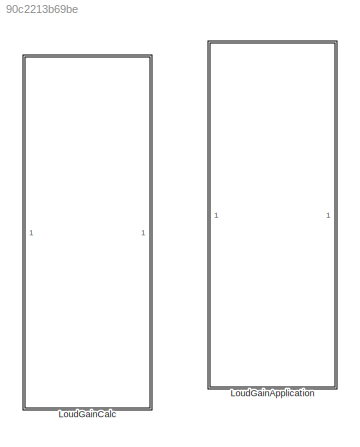
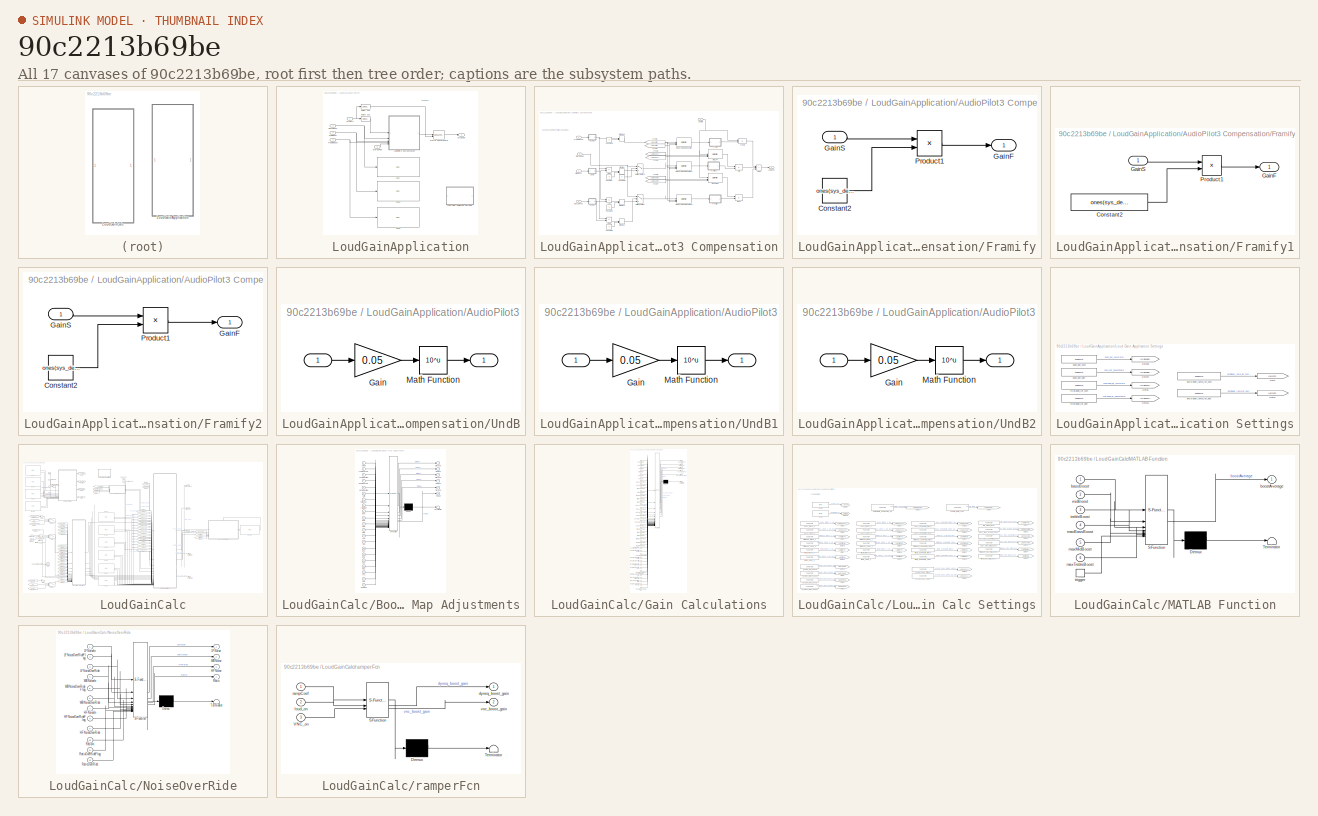
[diagram: thumbnail index - all 17 canvases of the model, root first then tree order]
MODEL slx_90c2213b69be
KIND library
CONFIG AbsTol = auto
CONFIG EnableMultiTasking = off
CONFIG FixedStep = auto
CONFIG InitFcn = Loudness_init;
CONFIG MaxStep = auto
CONFIG MinStep = auto
CONFIG RelTol = 1e-3
CONFIG SampleTimeConstraint = Unconstrained
CONFIG SolverName = VariableStepAuto
CONFIG StartTime = 0.0
CONFIG StopTime = 10.0
BLOCK [SubSystem] LoudGainApplication
BLOCK [SubSystem] LoudGainApplication/AudioPilot3 Compensation
BLOCK [Sum] LoudGainApplication/AudioPilot3 Compensation/Add
  IconShape = rectangular
  Inputs = -+
BLOCK [Sum] LoudGainApplication/AudioPilot3 Compensation/Add1
  IconShape = rectangular
  Inputs = -+
BLOCK [Sum] LoudGainApplication/AudioPilot3 Compensation/Add2
  IconShape = rectangular
  Inputs = +++
BLOCK [Sum] LoudGainApplication/AudioPilot3 Compensation/Add3
  IconShape = rectangular
  Inputs = -+
BLOCK [Inport] LoudGainApplication/AudioPilot3 Compensation/Audio in
BLOCK [Outport] LoudGainApplication/AudioPilot3 Compensation/Audio out
  VectorParamsAs1DForOutWhenUnconnected = off
BLOCK [Product] LoudGainApplication/AudioPilot3 Compensation/Bass
  InputSameDT = on
  OutDataTypeStr = Inherit: Same as first input
  SaturateOnIntegerOverflow = on
BLOCK [Reference] LoudGainApplication/AudioPilot3 Compensation/Bass BPF  REF=dspobslib/Digital Filter
  SourceBlock = dspobslib/Digital Filter
  SourceType = Digital Filter
  UserDataPersistent = on
BLOCK [Inport] LoudGainApplication/AudioPilot3 Compensation/BassBoost
  Port = 2
BLOCK [Constant] LoudGainApplication/AudioPilot3 Compensation/Constant
  OutDataTypeStr = single
  Value = 0
BLOCK [Constant] LoudGainApplication/AudioPilot3 Compensation/Constant1
  OutDataTypeStr = single
  Value = 0
BLOCK [Constant] LoudGainApplication/AudioPilot3 Compensation/Constant2
  OutDataTypeStr = single
  Value = 0
BLOCK [Constant] LoudGainApplication/AudioPilot3 Compensation/Constant3
  OutDataTypeStr = single
  Value = 0
BLOCK [Constant] LoudGainApplication/AudioPilot3 Compensation/Constant4
  OutDataTypeStr = single
  Value = 0
BLOCK [SubSystem] LoudGainApplication/AudioPilot3 Compensation/Framify
  TreatAsAtomicUnit = on
BLOCK [Constant] LoudGainApplication/AudioPilot3 Compensation/Framify/Constant2
  OutDataTypeStr = single
  Value = ones(sys_defs.frameSize, sys_defs.number_of_input_entertainment_channels)
  VectorParams1D = off
BLOCK [Outport] LoudGainApplication/AudioPilot3 Compensation/Framify/GainF
  VectorParamsAs1DForOutWhenUnconnected = off
BLOCK [Inport] LoudGainApplication/AudioPilot3 Compensation/Framify/GainS
BLOCK [Product] LoudGainApplication/AudioPilot3 Compensation/Framify/Product1
  RndMeth = Zero
BLOCK [SubSystem] LoudGainApplication/AudioPilot3 Compensation/Framify1
  TreatAsAtomicUnit = on
BLOCK [Constant] LoudGainApplication/AudioPilot3 Compensation/Framify1/Constant2
  OutDataTypeStr = single
  Value = ones(sys_defs.frameSize, sys_defs.number_of_input_entertainment_channels)
  VectorParams1D = off
BLOCK [Outport] LoudGainApplication/AudioPilot3 Compensation/Framify1/GainF
  VectorParamsAs1DForOutWhenUnconnected = off
BLOCK [Inport] LoudGainApplication/AudioPilot3 Compensation/Framify1/GainS
  OutDataTypeStr = single
BLOCK [Product] LoudGainApplication/AudioPilot3 Compensation/Framify1/Product1
  RndMeth = Zero
BLOCK [SubSystem] LoudGainApplication/AudioPilot3 Compensation/Framify2
  TreatAsAtomicUnit = on
BLOCK [Constant] LoudGainApplication/AudioPilot3 Compensation/Framify2/Constant2
  OutDataTypeStr = single
  Value = ones(sys_defs.frameSize, sys_defs.number_of_input_entertainment_channels)
  VectorParams1D = off
BLOCK [Outport] LoudGainApplication/AudioPilot3 Compensation/Framify2/GainF
  VectorParamsAs1DForOutWhenUnconnected = off
BLOCK [Inport] LoudGainApplication/AudioPilot3 Compensation/Framify2/GainS
BLOCK [Product] LoudGainApplication/AudioPilot3 Compensation/Framify2/Product1
  RndMeth = Zero
BLOCK [From] LoudGainApplication/AudioPilot3 Compensation/From1
  GotoTag = LGCAntiZipLPFNum
  TagVisibility = global
BLOCK [From] LoudGainApplication/AudioPilot3 Compensation/From2
  GotoTag = LGCloudLPFNum
  TagVisibility = global
BLOCK [From] LoudGainApplication/AudioPilot3 Compensation/From3
  GotoTag = LGCloudLPFDenom
  TagVisibility = global
BLOCK [From] LoudGainApplication/AudioPilot3 Compensation/From4
  GotoTag = LGCAntiZipLPFDenom
  TagVisibility = global
BLOCK [From] LoudGainApplication/AudioPilot3 Compensation/From6
  GotoTag = LGCloudBPFNum
  TagVisibility = global
BLOCK [From] LoudGainApplication/AudioPilot3 Compensation/From7
  GotoTag = LGCloudBPFDenom
  TagVisibility = global
BLOCK [Product] LoudGainApplication/AudioPilot3 Compensation/Mid
  InputSameDT = on
  OutDataTypeStr = Inherit: Same as first input
  SaturateOnIntegerOverflow = on
BLOCK [Reference] LoudGainApplication/AudioPilot3 Compensation/Mid LPF  REF=dspobslib/Digital Filter
  SourceBlock = dspobslib/Digital Filter
  SourceType = Digital Filter
  UserDataPersistent = on
BLOCK [Inport] LoudGainApplication/AudioPilot3 Compensation/MidBoost
  Port = 3
BLOCK [MinMax] LoudGainApplication/AudioPilot3 Compensation/MinMax
  Function = max
  Inputs = 2
BLOCK [MinMax] LoudGainApplication/AudioPilot3 Compensation/MinMax1
  Function = max
  Inputs = 2
BLOCK [MinMax] LoudGainApplication/AudioPilot3 Compensation/MinMax2
  Function = max
  Inputs = 2
BLOCK [MinMax] LoudGainApplication/AudioPilot3 Compensation/MinMax3
  Function = max
  Inputs = 2
BLOCK [MultiPortSwitch] LoudGainApplication/AudioPilot3 Compensation/Multiport Switch
  DataPortOrder = Zero-based contiguous
  InputSameDT = off
  Inputs = 2
  SaturateOnIntegerOverflow = off
  zeroidx = on
BLOCK [MultiPortSwitch] LoudGainApplication/AudioPilot3 Compensation/Multiport Switch2
  DataPortOrder = Zero-based contiguous
  InputSameDT = off
  Inputs = 2
  SaturateOnIntegerOverflow = off
  zeroidx = on
BLOCK [Inport] LoudGainApplication/AudioPilot3 Compensation/StereoFlag
  Port = 5
BLOCK [Product] LoudGainApplication/AudioPilot3 Compensation/Treble
  InputSameDT = on
  OutDataTypeStr = Inherit: Same as first input
  SaturateOnIntegerOverflow = on
BLOCK [Inport] LoudGainApplication/AudioPilot3 Compensation/TrebleBoost
  Port = 4
BLOCK [SubSystem] LoudGainApplication/AudioPilot3 Compensation/UndB
BLOCK [Inport] LoudGainApplication/AudioPilot3 Compensation/UndB/ 
BLOCK [Outport] LoudGainApplication/AudioPilot3 Compensation/UndB/  
  VectorParamsAs1DForOutWhenUnconnected = off
BLOCK [Gain] LoudGainApplication/AudioPilot3 Compensation/UndB/Gain
  Gain = 0.05
  OutDataTypeStr = Inherit: Same as input
  ParamDataTypeStr = Inherit: Same as input
  SaturateOnIntegerOverflow = on
BLOCK [Math] LoudGainApplication/AudioPilot3 Compensation/UndB/Math Function
  Operator = 10^u
  SignedPower = on
BLOCK [SubSystem] LoudGainApplication/AudioPilot3 Compensation/UndB1
BLOCK [Inport] LoudGainApplication/AudioPilot3 Compensation/UndB1/ 
BLOCK [Outport] LoudGainApplication/AudioPilot3 Compensation/UndB1/  
  VectorParamsAs1DForOutWhenUnconnected = off
BLOCK [Gain] LoudGainApplication/AudioPilot3 Compensation/UndB1/Gain
  Gain = 0.05
  OutDataTypeStr = Inherit: Same as input
  ParamDataTypeStr = Inherit: Same as input
  SaturateOnIntegerOverflow = on
BLOCK [Math] LoudGainApplication/AudioPilot3 Compensation/UndB1/Math Function
  Operator = 10^u
  SignedPower = on
BLOCK [SubSystem] LoudGainApplication/AudioPilot3 Compensation/UndB2
BLOCK [Inport] LoudGainApplication/AudioPilot3 Compensation/UndB2/ 
BLOCK [Outport] LoudGainApplication/AudioPilot3 Compensation/UndB2/  
  VectorParamsAs1DForOutWhenUnconnected = off
BLOCK [Gain] LoudGainApplication/AudioPilot3 Compensation/UndB2/Gain
  Gain = 0.05
  OutDataTypeStr = Inherit: Same as input
  ParamDataTypeStr = Inherit: Same as input
  SaturateOnIntegerOverflow = on
BLOCK [Math] LoudGainApplication/AudioPilot3 Compensation/UndB2/Math Function
  Operator = 10^u
  SignedPower = on
BLOCK [Reference] LoudGainApplication/AudioPilot3 Compensation/Zipper Noise Reduction  REF=dspobslib/Digital Filter
  SourceBlock = dspobslib/Digital Filter
  SourceType = Digital Filter
  UserDataPersistent = on
BLOCK [Reference] LoudGainApplication/AudioPilot3 Compensation/Zipper Noise Reduction1  REF=dspobslib/Digital Filter
  SourceBlock = dspobslib/Digital Filter
  SourceType = Digital Filter
  UserDataPersistent = on
BLOCK [Reference] LoudGainApplication/AudioPilot3 Compensation/Zipper Noise Reduction2  REF=dspobslib/Digital Filter
  SourceBlock = dspobslib/Digital Filter
  SourceType = Digital Filter
  UserDataPersistent = on
BLOCK [Inport] LoudGainApplication/BassBoost
  Port = 2
BLOCK [SubSystem] LoudGainApplication/Loud Gain Application Settings
BLOCK [Goto] LoudGainApplication/Loud Gain Application Settings/Goto
  GotoTag = LGCAntiZipLPFNum
  TagVisibility = global
BLOCK [Goto] LoudGainApplication/Loud Gain Application Settings/Goto1
  GotoTag = LGCAntiZipLPFDenom
  TagVisibility = global
BLOCK [Goto] LoudGainApplication/Loud Gain Application Settings/Goto11
  GotoTag = LGCloudLPFDenom
  TagVisibility = global
BLOCK [Goto] LoudGainApplication/Loud Gain Application Settings/Goto36
  GotoTag = LGCloudBPFNum
  TagVisibility = global
BLOCK [Goto] LoudGainApplication/Loud Gain Application Settings/Goto37
  GotoTag = LGCloudBPFDenom
  TagVisibility = global
BLOCK [Goto] LoudGainApplication/Loud Gain Application Settings/Goto6
  GotoTag = LGCloudLPFNum
  TagVisibility = global
BLOCK [Reference] LoudGainApplication/Loud Gain Application Settings/antizipper_ramp_lpf_den  REF=TuneVar/TuneTOP
  SourceBlock = TuneVar/TuneTOP
  SourceType = Bose Trivial Tune TOP
BLOCK [Reference] LoudGainApplication/Loud Gain Application Settings/antizipper_ramp_lpf_num  REF=TuneVar/TuneTOP
  SourceBlock = TuneVar/TuneTOP
  SourceType = Bose Trivial Tune TOP
BLOCK [Reference] LoudGainApplication/Loud Gain Application Settings/bass_bpf_den  REF=TuneVar/TuneTOP
  SourceBlock = TuneVar/TuneTOP
  SourceType = Bose Trivial Tune TOP
BLOCK [Reference] LoudGainApplication/Loud Gain Application Settings/bass_bpf_num  REF=TuneVar/TuneTOP
  SourceBlock = TuneVar/TuneTOP
  SourceType = Bose Trivial Tune TOP
BLOCK [Reference] LoudGainApplication/Loud Gain Application Settings/midrange_lpf_den  REF=TuneVar/TuneTOP
  SourceBlock = TuneVar/TuneTOP
  SourceType = Bose Trivial Tune TOP
BLOCK [Reference] LoudGainApplication/Loud Gain Application Settings/midrange_lpf_num  REF=TuneVar/TuneTOP
  SourceBlock = TuneVar/TuneTOP
  SourceType = Bose Trivial Tune TOP
BLOCK [Concatenate] LoudGainApplication/Matrix Concatenate
  ConcatenateDimension = 2
  Mode = Multidimensional array
BLOCK [Inport] LoudGainApplication/MidBoost
  Port = 3
BLOCK [Inport] LoudGainApplication/MusicIn
BLOCK [Outport] LoudGainApplication/MusicOut
  VectorParamsAs1DForOutWhenUnconnected = off
BLOCK [Reference] LoudGainApplication/RTC  REF=RTC/RTC
  SourceBlock = RTC/RTC
  SourceType = Bose RTC Receive
BLOCK [Reference] LoudGainApplication/RTC1  REF=RTC/RTC
  SourceBlock = RTC/RTC
  SourceType = Bose RTC Receive
BLOCK [Reference] LoudGainApplication/RTC2  REF=RTC/RTC
  SourceBlock = RTC/RTC
  SourceType = Bose RTC Receive
BLOCK [Inport] LoudGainApplication/StereoFlag
  Port = 5
BLOCK [Inport] LoudGainApplication/TrebleBoost
  Port = 4
BLOCK [Selector] LoudGainApplication/select Ch1
  IndexOptions = Select all,Index vector (dialog)
  Indices = [1 3],1:2
  InputPortWidth = 3
  NumberOfDimensions = 2
  OutputSizes = 1,1
BLOCK [Selector] LoudGainApplication/select Ch2
  IndexOptions = Select all,Index vector (dialog)
  Indices = [1 3],3:6
  InputPortWidth = 3
  NumberOfDimensions = 2
  OutputSizes = 1,1
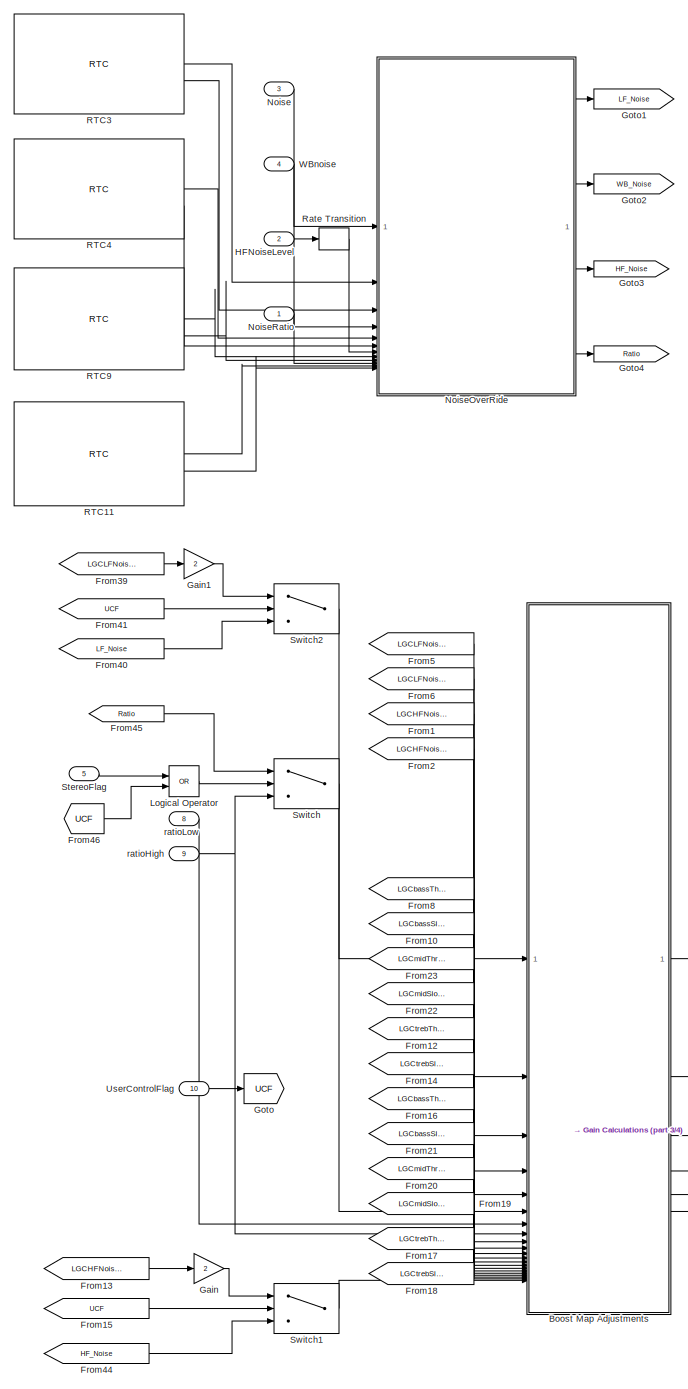
[diagram: LoudGainCalc - part 1/4, left side, full height]
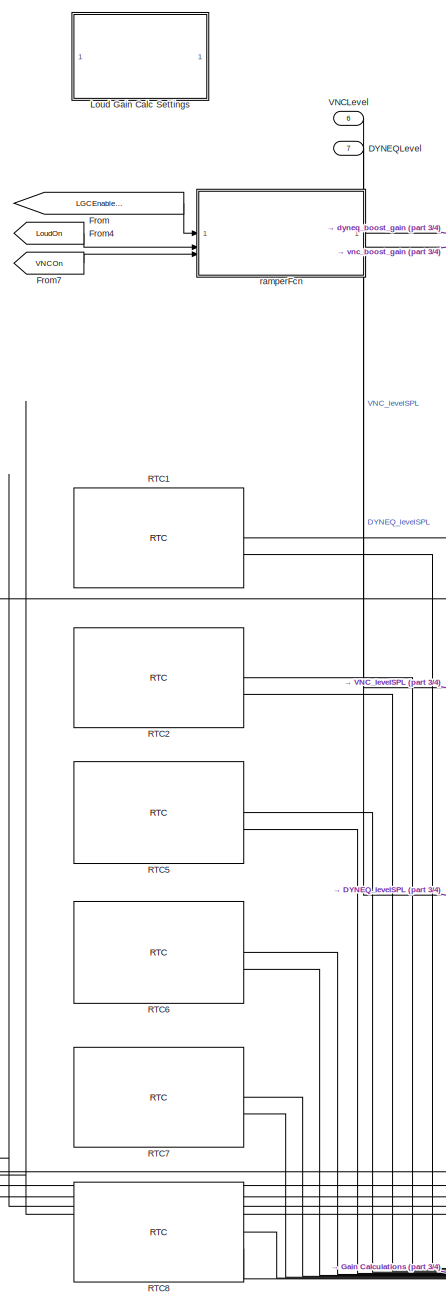
[diagram: LoudGainCalc - part 2/4, center side, full height]
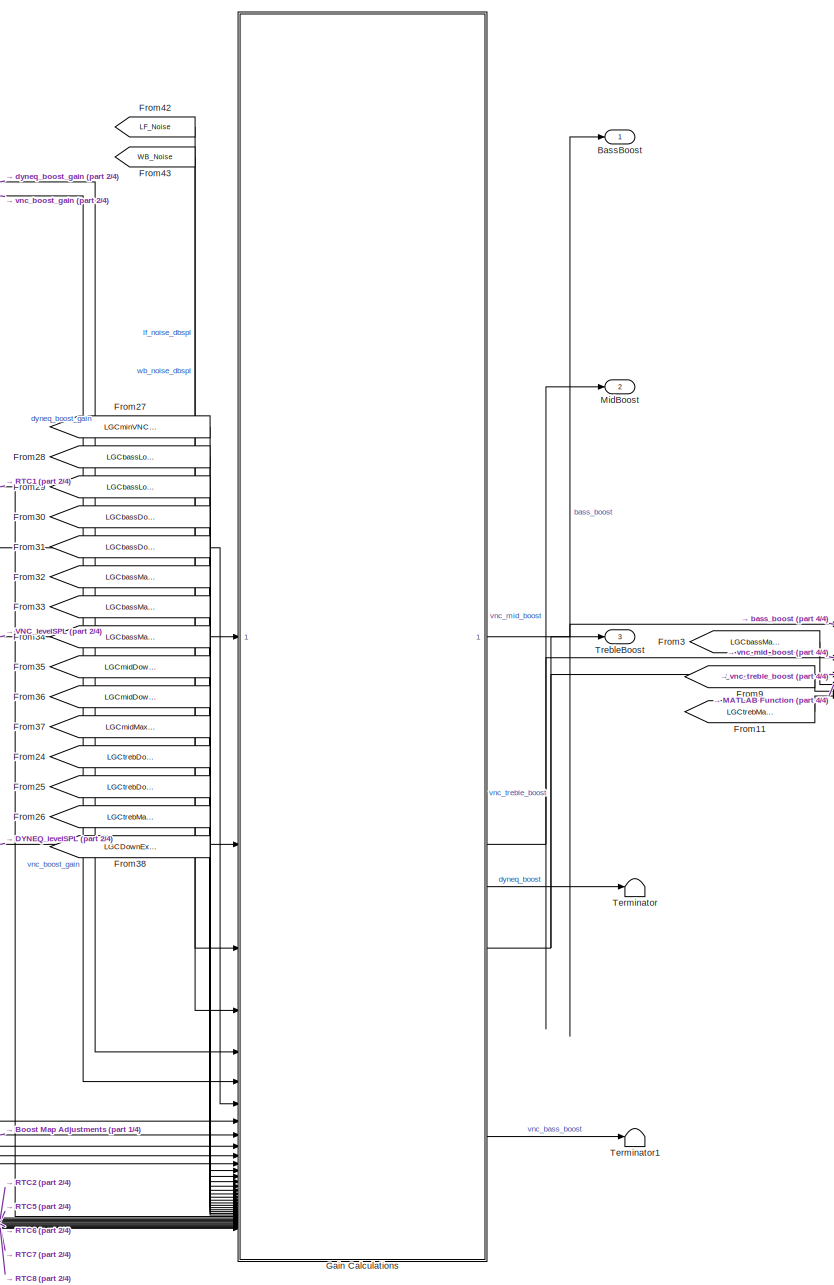
[diagram: LoudGainCalc - part 3/4, center side, full height]
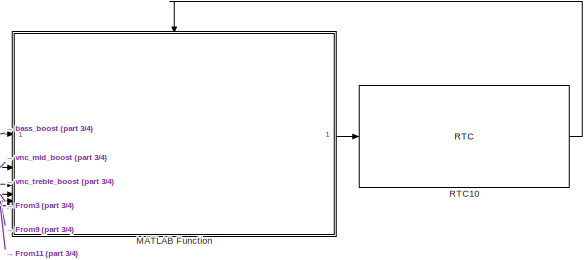
[diagram: LoudGainCalc - part 4/4, middle right region]
BLOCK [SubSystem] LoudGainCalc
BLOCK [Outport] LoudGainCalc/BassBoost
  VectorParamsAs1DForOutWhenUnconnected = off
BLOCK [SubSystem] LoudGainCalc/Boost Map Adjustments
  ErrorFcn = Stateflow.Translate.translate
  PermitHierarchicalResolution = ExplicitOnly
  SFBlockType = MATLAB Function
  TreatAsAtomicUnit = on
BLOCK [Demux] LoudGainCalc/Boost Map Adjustments/ Demux 
  Outputs = 1
BLOCK [S-Function] LoudGainCalc/Boost Map Adjustments/ SFunction 
  EnableBusSupport = off
  FunctionName = sf_sfun
  PortCounts = [21 7]
  SFcnIsStateOwnerBlock = off
  SFunctionDeploymentMode = off
  Tag = Stateflow S-Function 9
BLOCK [Terminator] LoudGainCalc/Boost Map Adjustments/ Terminator 
BLOCK [Inport] LoudGainCalc/Boost Map Adjustments/BS0
  Port = 10
BLOCK [Inport] LoudGainCalc/Boost Map Adjustments/BS1
  Port = 16
BLOCK [Inport] LoudGainCalc/Boost Map Adjustments/BT0
  Port = 9
BLOCK [Inport] LoudGainCalc/Boost Map Adjustments/BT1
  Port = 15
BLOCK [Outport] LoudGainCalc/Boost Map Adjustments/Bslope
  Port = 2
  VectorParamsAs1DForOutWhenUnconnected = off
BLOCK [Outport] LoudGainCalc/Boost Map Adjustments/Bthresh
  VectorParamsAs1DForOutWhenUnconnected = off
BLOCK [Inport] LoudGainCalc/Boost Map Adjustments/HFNoise
  Port = 21
BLOCK [Inport] LoudGainCalc/Boost Map Adjustments/HFNoiseHigh
  Port = 5
BLOCK [Inport] LoudGainCalc/Boost Map Adjustments/HFNoiseLow
  Port = 4
BLOCK [Inport] LoudGainCalc/Boost Map Adjustments/LFNoiseHigh
  Port = 3
BLOCK [Inport] LoudGainCalc/Boost Map Adjustments/LFNoiseLow
  Port = 2
BLOCK [Inport] LoudGainCalc/Boost Map Adjustments/MS0
  Port = 12
BLOCK [Inport] LoudGainCalc/Boost Map Adjustments/MS1
  Port = 18
BLOCK [Inport] LoudGainCalc/Boost Map Adjustments/MT0
  Port = 11
BLOCK [Inport] LoudGainCalc/Boost Map Adjustments/MT1
  Port = 17
BLOCK [Outport] LoudGainCalc/Boost Map Adjustments/Mslope
  Port = 4
  VectorParamsAs1DForOutWhenUnconnected = off
BLOCK [Outport] LoudGainCalc/Boost Map Adjustments/Mthresh
  Port = 3
  VectorParamsAs1DForOutWhenUnconnected = off
BLOCK [Inport] LoudGainCalc/Boost Map Adjustments/TS0
  Port = 14
BLOCK [Inport] LoudGainCalc/Boost Map Adjustments/TS1
  Port = 20
BLOCK [Inport] LoudGainCalc/Boost Map Adjustments/TT0
  Port = 13
BLOCK [Inport] LoudGainCalc/Boost Map Adjustments/TT1
  Port = 19
BLOCK [Outport] LoudGainCalc/Boost Map Adjustments/Tslope
  Port = 6
  VectorParamsAs1DForOutWhenUnconnected = off
BLOCK [Outport] LoudGainCalc/Boost Map Adjustments/Tthresh
  Port = 5
  VectorParamsAs1DForOutWhenUnconnected = off
BLOCK [Inport] LoudGainCalc/Boost Map Adjustments/noise
BLOCK [Inport] LoudGainCalc/Boost Map Adjustments/ratio
  Port = 6
BLOCK [Inport] LoudGainCalc/Boost Map Adjustments/ratioHigh
  Port = 8
BLOCK [Inport] LoudGainCalc/Boost Map Adjustments/ratioLow
  Port = 7
BLOCK [Inport] LoudGainCalc/DYNEQLevel
  Port = 7
BLOCK [From] LoudGainCalc/From
  GotoTag = LGCEnableRampCoef
BLOCK [From] LoudGainCalc/From1
  GotoTag = LGCHFNoiseLow
  TagVisibility = global
BLOCK [From] LoudGainCalc/From10
  GotoTag = LGCbassSlope0
  TagVisibility = global
BLOCK [From] LoudGainCalc/From11
  GotoTag = LGCtrebMaxBoost
  TagVisibility = global
BLOCK [From] LoudGainCalc/From12
  GotoTag = LGCtrebThresh0
  TagVisibility = global
BLOCK [From] LoudGainCalc/From13
  GotoTag = LGCHFNoiseHigh
  TagVisibility = global
BLOCK [From] LoudGainCalc/From14
  GotoTag = LGCtrebSlope0
  TagVisibility = global
BLOCK [From] LoudGainCalc/From15
  GotoTag = UCF
BLOCK [From] LoudGainCalc/From16
  GotoTag = LGCbassThresh1
  TagVisibility = global
BLOCK [From] LoudGainCalc/From17
  GotoTag = LGCtrebThresh1
  TagVisibility = global
BLOCK [From] LoudGainCalc/From18
  GotoTag = LGCtrebSlope1
  TagVisibility = global
BLOCK [From] LoudGainCalc/From19
  GotoTag = LGCmidSlope1
  TagVisibility = global
BLOCK [From] LoudGainCalc/From2
  GotoTag = LGCHFNoiseHigh
  TagVisibility = global
BLOCK [From] LoudGainCalc/From20
  GotoTag = LGCmidThresh1
  TagVisibility = global
BLOCK [From] LoudGainCalc/From21
  GotoTag = LGCbassSlope1
  TagVisibility = global
BLOCK [From] LoudGainCalc/From22
  GotoTag = LGCmidSlope0
  TagVisibility = global
BLOCK [From] LoudGainCalc/From23
  GotoTag = LGCmidThresh0
  TagVisibility = global
BLOCK [From] LoudGainCalc/From24
  GotoTag = LGCtrebDownThresh
  TagVisibility = global
BLOCK [From] LoudGainCalc/From25
  GotoTag = LGCtrebDownSlope
  TagVisibility = global
BLOCK [From] LoudGainCalc/From26
  GotoTag = LGCtrebMaxBoost
  TagVisibility = global
BLOCK [From] LoudGainCalc/From27
  GotoTag = LGCminVNCSignal
  TagVisibility = global
BLOCK [From] LoudGainCalc/From28
  GotoTag = LGCbassLoudThresh
  TagVisibility = global
BLOCK [From] LoudGainCalc/From29
  GotoTag = LGCbassLoudSlope
  TagVisibility = global
BLOCK [From] LoudGainCalc/From3
  GotoTag = LGCbassMaxBoost
  TagVisibility = global
BLOCK [From] LoudGainCalc/From30
  GotoTag = LGCbassDownThresh
  TagVisibility = global
BLOCK [From] LoudGainCalc/From31
  GotoTag = LGCbassDownSlope
  TagVisibility = global
BLOCK [From] LoudGainCalc/From32
  GotoTag = LGCbassMaxLoudBoost
  TagVisibility = global
BLOCK [From] LoudGainCalc/From33
  GotoTag = LGCbassMaxVNCBoost
  TagVisibility = global
BLOCK [From] LoudGainCalc/From34
  GotoTag = LGCbassMaxBoost
  TagVisibility = global
BLOCK [From] LoudGainCalc/From35
  GotoTag = LGCmidDownThresh
  TagVisibility = global
BLOCK [From] LoudGainCalc/From36
  GotoTag = LGCmidDownSlope
  TagVisibility = global
BLOCK [From] LoudGainCalc/From37
  GotoTag = LGCmidMaxBoost
  TagVisibility = global
BLOCK [From] LoudGainCalc/From38
  GotoTag = LGCDownExpansionOn
  TagVisibility = global
BLOCK [From] LoudGainCalc/From39
  GotoTag = LGCLFNoiseHigh
  TagVisibility = global
BLOCK [From] LoudGainCalc/From4
  GotoTag = LoudOn
  TagVisibility = global
BLOCK [From] LoudGainCalc/From40
  GotoTag = LF_Noise
BLOCK [From] LoudGainCalc/From41
  GotoTag = UCF
BLOCK [From] LoudGainCalc/From42
  GotoTag = LF_Noise
BLOCK [From] LoudGainCalc/From43
  GotoTag = WB_Noise
BLOCK [From] LoudGainCalc/From44
  GotoTag = HF_Noise
BLOCK [From] LoudGainCalc/From45
  GotoTag = Ratio
BLOCK [From] LoudGainCalc/From46
  GotoTag = UCF
BLOCK [From] LoudGainCalc/From5
  GotoTag = LGCLFNoiseLow
  TagVisibility = global
BLOCK [From] LoudGainCalc/From6
  GotoTag = LGCLFNoiseHigh
  TagVisibility = global
BLOCK [From] LoudGainCalc/From7
  GotoTag = VNCOn
  TagVisibility = global
BLOCK [From] LoudGainCalc/From8
  GotoTag = LGCbassThresh0
  TagVisibility = global
BLOCK [From] LoudGainCalc/From9
  GotoTag = LGCmidMaxBoost
  TagVisibility = global
BLOCK [Gain] LoudGainCalc/Gain
  Gain = 2
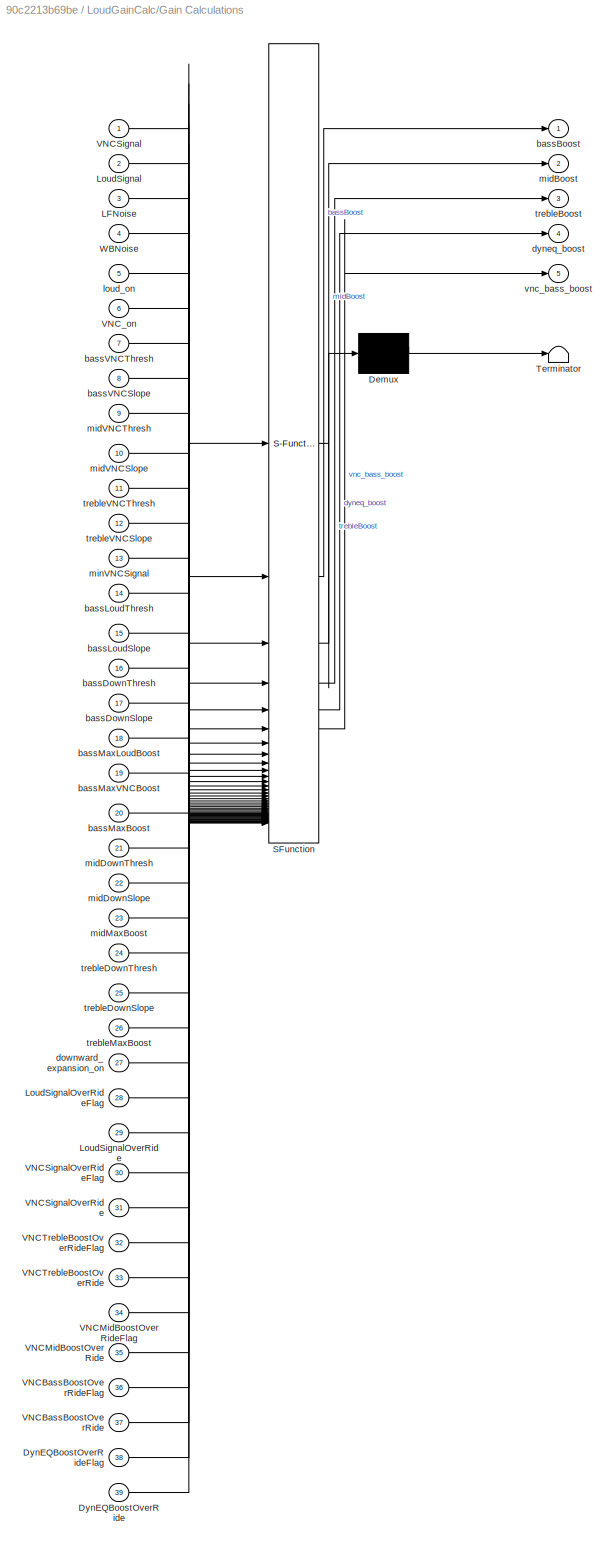
BLOCK [SubSystem] LoudGainCalc/Gain Calculations
  ErrorFcn = Stateflow.Translate.translate
  PermitHierarchicalResolution = ExplicitOnly
  SFBlockType = MATLAB Function
  TreatAsAtomicUnit = on
BLOCK [Demux] LoudGainCalc/Gain Calculations/ Demux 
  Outputs = 1
BLOCK [S-Function] LoudGainCalc/Gain Calculations/ SFunction 
  EnableBusSupport = off
  FunctionName = sf_sfun
  PortCounts = [39 6]
  SFcnIsStateOwnerBlock = off
  SFunctionDeploymentMode = off
  Tag = Stateflow S-Function 7
BLOCK [Terminator] LoudGainCalc/Gain Calculations/ Terminator 
BLOCK [Inport] LoudGainCalc/Gain Calculations/DynEQBoostOverRide
  Port = 39
BLOCK [Inport] LoudGainCalc/Gain Calculations/DynEQBoostOverRideFlag
  Port = 38
BLOCK [Inport] LoudGainCalc/Gain Calculations/LFNoise
  Port = 3
BLOCK [Inport] LoudGainCalc/Gain Calculations/LoudSignal
  Port = 2
BLOCK [Inport] LoudGainCalc/Gain Calculations/LoudSignalOverRide
  Port = 29
BLOCK [Inport] LoudGainCalc/Gain Calculations/LoudSignalOverRideFlag
  Port = 28
BLOCK [Inport] LoudGainCalc/Gain Calculations/VNCBassBoostOverRide
  Port = 37
BLOCK [Inport] LoudGainCalc/Gain Calculations/VNCBassBoostOverRideFlag
  Port = 36
BLOCK [Inport] LoudGainCalc/Gain Calculations/VNCMidBoostOverRide
  Port = 35
BLOCK [Inport] LoudGainCalc/Gain Calculations/VNCMidBoostOverRideFlag
  Port = 34
BLOCK [Inport] LoudGainCalc/Gain Calculations/VNCSignal
BLOCK [Inport] LoudGainCalc/Gain Calculations/VNCSignalOverRide
  Port = 31
BLOCK [Inport] LoudGainCalc/Gain Calculations/VNCSignalOverRideFlag
  Port = 30
BLOCK [Inport] LoudGainCalc/Gain Calculations/VNCTrebleBoostOverRide
  Port = 33
BLOCK [Inport] LoudGainCalc/Gain Calculations/VNCTrebleBoostOverRideFlag
  Port = 32
BLOCK [Inport] LoudGainCalc/Gain Calculations/VNC_on
  Port = 6
BLOCK [Inport] LoudGainCalc/Gain Calculations/WBNoise
  Port = 4
BLOCK [Outport] LoudGainCalc/Gain Calculations/bassBoost
  VectorParamsAs1DForOutWhenUnconnected = off
BLOCK [Inport] LoudGainCalc/Gain Calculations/bassDownSlope
  Port = 17
BLOCK [Inport] LoudGainCalc/Gain Calculations/bassDownThresh
  Port = 16
BLOCK [Inport] LoudGainCalc/Gain Calculations/bassLoudSlope
  Port = 15
BLOCK [Inport] LoudGainCalc/Gain Calculations/bassLoudThresh
  Port = 14
BLOCK [Inport] LoudGainCalc/Gain Calculations/bassMaxBoost
  Port = 20
BLOCK [Inport] LoudGainCalc/Gain Calculations/bassMaxLoudBoost
  Port = 18
BLOCK [Inport] LoudGainCalc/Gain Calculations/bassMaxVNCBoost
  Port = 19
BLOCK [Inport] LoudGainCalc/Gain Calculations/bassVNCSlope
  Port = 8
BLOCK [Inport] LoudGainCalc/Gain Calculations/bassVNCThresh
  Port = 7
BLOCK [Inport] LoudGainCalc/Gain Calculations/downward_expansion_on
  Port = 27
BLOCK [Outport] LoudGainCalc/Gain Calculations/dyneq_boost
  Port = 4
  VectorParamsAs1DForOutWhenUnconnected = off
BLOCK [Inport] LoudGainCalc/Gain Calculations/loud_on
  Port = 5
BLOCK [Outport] LoudGainCalc/Gain Calculations/midBoost
  Port = 2
  VectorParamsAs1DForOutWhenUnconnected = off
BLOCK [Inport] LoudGainCalc/Gain Calculations/midDownSlope
  Port = 22
BLOCK [Inport] LoudGainCalc/Gain Calculations/midDownThresh
  Port = 21
BLOCK [Inport] LoudGainCalc/Gain Calculations/midMaxBoost
  Port = 23
BLOCK [Inport] LoudGainCalc/Gain Calculations/midVNCSlope
  Port = 10
BLOCK [Inport] LoudGainCalc/Gain Calculations/midVNCThresh
  Port = 9
BLOCK [Inport] LoudGainCalc/Gain Calculations/minVNCSignal
  Port = 13
BLOCK [Outport] LoudGainCalc/Gain Calculations/trebleBoost
  Port = 3
  VectorParamsAs1DForOutWhenUnconnected = off
BLOCK [Inport] LoudGainCalc/Gain Calculations/trebleDownSlope
  Port = 25
BLOCK [Inport] LoudGainCalc/Gain Calculations/trebleDownThresh
  Port = 24
BLOCK [Inport] LoudGainCalc/Gain Calculations/trebleMaxBoost
  Port = 26
BLOCK [Inport] LoudGainCalc/Gain Calculations/trebleVNCSlope
  Port = 12
BLOCK [Inport] LoudGainCalc/Gain Calculations/trebleVNCThresh
  Port = 11
BLOCK [Outport] LoudGainCalc/Gain Calculations/vnc_bass_boost
  Port = 5
  VectorParamsAs1DForOutWhenUnconnected = off
BLOCK [Gain] LoudGainCalc/Gain1
  Gain = 2
BLOCK [Goto] LoudGainCalc/Goto
  GotoTag = UCF
BLOCK [Goto] LoudGainCalc/Goto1
  GotoTag = LF_Noise
BLOCK [Goto] LoudGainCalc/Goto2
  GotoTag = WB_Noise
BLOCK [Goto] LoudGainCalc/Goto3
  GotoTag = HF_Noise
BLOCK [Goto] LoudGainCalc/Goto4
  GotoTag = Ratio
BLOCK [Inport] LoudGainCalc/HFNoiseLevel
  Port = 2
BLOCK [Logic] LoudGainCalc/Logical Operator
  AllPortsSameDT = off
  Operator = OR
  OutDataTypeStr = boolean
BLOCK [SubSystem] LoudGainCalc/Loud Gain Calc Settings
BLOCK [Goto] LoudGainCalc/Loud Gain Calc Settings/Goto1
  GotoTag = LGCLFNoiseHigh
  TagVisibility = global
BLOCK [Goto] LoudGainCalc/Loud Gain Calc Settings/Goto10
  GotoTag = LGCmidSlope0
  TagVisibility = global
BLOCK [Goto] LoudGainCalc/Loud Gain Calc Settings/Goto12
  GotoTag = LGCtrebSlope0
  TagVisibility = global
BLOCK [Goto] LoudGainCalc/Loud Gain Calc Settings/Goto14
  GotoTag = LGCbassThresh1
  TagVisibility = global
BLOCK [Goto] LoudGainCalc/Loud Gain Calc Settings/Goto15
  GotoTag = LGCbassSlope1
  TagVisibility = global
BLOCK [Goto] LoudGainCalc/Loud Gain Calc Settings/Goto16
  GotoTag = LGCmidThresh1
  TagVisibility = global
BLOCK [Goto] LoudGainCalc/Loud Gain Calc Settings/Goto17
  GotoTag = LGCmidSlope1
  TagVisibility = global
BLOCK [Goto] LoudGainCalc/Loud Gain Calc Settings/Goto18
  GotoTag = LGCtrebThresh1
  TagVisibility = global
BLOCK [Goto] LoudGainCalc/Loud Gain Calc Settings/Goto19
  GotoTag = LGCtrebSlope1
  TagVisibility = global
BLOCK [Goto] LoudGainCalc/Loud Gain Calc Settings/Goto2
  GotoTag = LGCbassThresh0
  TagVisibility = global
BLOCK [Goto] LoudGainCalc/Loud Gain Calc Settings/Goto20
  GotoTag = LGCbassLoudThresh
  TagVisibility = global
BLOCK [Goto] LoudGainCalc/Loud Gain Calc Settings/Goto21
  GotoTag = LGCbassLoudSlope
  TagVisibility = global
BLOCK [Goto] LoudGainCalc/Loud Gain Calc Settings/Goto22
  GotoTag = LGCbassDownThresh
  TagVisibility = global
BLOCK [Goto] LoudGainCalc/Loud Gain Calc Settings/Goto23
  GotoTag = LGCbassDownSlope
  TagVisibility = global
BLOCK [Goto] LoudGainCalc/Loud Gain Calc Settings/Goto24
  GotoTag = LGCmidDownThresh
  TagVisibility = global
BLOCK [Goto] LoudGainCalc/Loud Gain Calc Settings/Goto25
  GotoTag = VNCOn
  TagVisibility = global
BLOCK [Goto] LoudGainCalc/Loud Gain Calc Settings/Goto26
  GotoTag = LGCmidDownSlope
  TagVisibility = global
BLOCK [Goto] LoudGainCalc/Loud Gain Calc Settings/Goto27
  GotoTag = LGCtrebDownThresh
  TagVisibility = global
BLOCK [Goto] LoudGainCalc/Loud Gain Calc Settings/Goto28
  GotoTag = LGCtrebDownSlope
  TagVisibility = global
BLOCK [Goto] LoudGainCalc/Loud Gain Calc Settings/Goto29
  GotoTag = LGCDownExpansionOn
  TagVisibility = global
BLOCK [Goto] LoudGainCalc/Loud Gain Calc Settings/Goto3
  GotoTag = LGCHFNoiseHigh
  TagVisibility = global
BLOCK [Goto] LoudGainCalc/Loud Gain Calc Settings/Goto30
  GotoTag = LGCminVNCSignal
  TagVisibility = global
BLOCK [Goto] LoudGainCalc/Loud Gain Calc Settings/Goto31
  GotoTag = LGCbassMaxLoudBoost
  TagVisibility = global
BLOCK [Goto] LoudGainCalc/Loud Gain Calc Settings/Goto32
  GotoTag = LGCbassMaxVNCBoost
  TagVisibility = global
BLOCK [Goto] LoudGainCalc/Loud Gain Calc Settings/Goto33
  GotoTag = LGCbassMaxBoost
  TagVisibility = global
BLOCK [Goto] LoudGainCalc/Loud Gain Calc Settings/Goto34
  GotoTag = LGCmidMaxBoost
  TagVisibility = global
BLOCK [Goto] LoudGainCalc/Loud Gain Calc Settings/Goto35
  GotoTag = LGCtrebMaxBoost
  TagVisibility = global
BLOCK [Goto] LoudGainCalc/Loud Gain Calc Settings/Goto38
  GotoTag = LGCLFNoiseLow
  TagVisibility = global
BLOCK [Goto] LoudGainCalc/Loud Gain Calc Settings/Goto4
  GotoTag = LGCHFNoiseLow
  TagVisibility = global
BLOCK [Goto] LoudGainCalc/Loud Gain Calc Settings/Goto5
  GotoTag = LGCbassSlope0
  TagVisibility = global
BLOCK [Goto] LoudGainCalc/Loud Gain Calc Settings/Goto6
  GotoTag = LGCEnableRampCoef
  TagVisibility = global
BLOCK [Goto] LoudGainCalc/Loud Gain Calc Settings/Goto7
  GotoTag = LGCtrebThresh0
  TagVisibility = global
BLOCK [Goto] LoudGainCalc/Loud Gain Calc Settings/Goto8
  GotoTag = LoudOn
  TagVisibility = global
BLOCK [Goto] LoudGainCalc/Loud Gain Calc Settings/Goto9
  GotoTag = LGCmidThresh0
  TagVisibility = global
BLOCK [Reference] LoudGainCalc/Loud Gain Calc Settings/RTC8  REF=RTC/RTC
  SourceBlock = RTC/RTC
  SourceType = Bose RTC Receive
BLOCK [Reference] LoudGainCalc/Loud Gain Calc Settings/RTC9  REF=RTC/RTC
  SourceBlock = RTC/RTC
  SourceType = Bose RTC Receive
BLOCK [Reference] LoudGainCalc/Loud Gain Calc Settings/bass_downward_slope  REF=TuneVar/TuneTOP
  SourceBlock = TuneVar/TuneTOP
  SourceType = Bose Trivial Tune TOP
BLOCK [Reference] LoudGainCalc/Loud Gain Calc Settings/bass_downward_thresh  REF=TuneVar/TuneTOP
  SourceBlock = TuneVar/TuneTOP
  SourceType = Bose Trivial Tune TOP
BLOCK [Reference] LoudGainCalc/Loud Gain Calc Settings/bass_max_audiopilot_boost  REF=TuneVar/TuneTOP
  SourceBlock = TuneVar/TuneTOP
  SourceType = Bose Trivial Tune TOP
BLOCK [Reference] LoudGainCalc/Loud Gain Calc Settings/bass_max_dyneq_boost  REF=TuneVar/TuneTOP
  SourceBlock = TuneVar/TuneTOP
  SourceType = Bose Trivial Tune TOP
BLOCK [Reference] LoudGainCalc/Loud Gain Calc Settings/bass_max_total_boost  REF=TuneVar/TuneTOP
  SourceBlock = TuneVar/TuneTOP
  SourceType = Bose Trivial Tune TOP
BLOCK [Reference] LoudGainCalc/Loud Gain Calc Settings/bass_slope_0  REF=TuneVar/TuneTOP
  SourceBlock = TuneVar/TuneTOP
  SourceType = Bose Trivial Tune TOP
BLOCK [Reference] LoudGainCalc/Loud Gain Calc Settings/bass_slope_1  REF=TuneVar/TuneTOP
  SourceBlock = TuneVar/TuneTOP
  SourceType = Bose Trivial Tune TOP
BLOCK [Reference] LoudGainCalc/Loud Gain Calc Settings/bass_thresh_0  REF=TuneVar/TuneTOP
  SourceBlock = TuneVar/TuneTOP
  SourceType = Bose Trivial Tune TOP
BLOCK [Reference] LoudGainCalc/Loud Gain Calc Settings/bass_thresh_1  REF=TuneVar/TuneTOP
  SourceBlock = TuneVar/TuneTOP
  SourceType = Bose Trivial Tune TOP
BLOCK [Reference] LoudGainCalc/Loud Gain Calc Settings/downward_expansion_on  REF=TuneVar/TuneTOP
  SourceBlock = TuneVar/TuneTOP
  SourceType = Bose Trivial Tune TOP
BLOCK [Reference] LoudGainCalc/Loud Gain Calc Settings/dyneq_bass_slope  REF=TuneVar/TuneTOP
  SourceBlock = TuneVar/TuneTOP
  SourceType = Bose Trivial Tune TOP
BLOCK [Reference] LoudGainCalc/Loud Gain Calc Settings/dyneq_bass_thresh  REF=TuneVar/TuneTOP
  SourceBlock = TuneVar/TuneTOP
  SourceType = Bose Trivial Tune TOP
BLOCK [Reference] LoudGainCalc/Loud Gain Calc Settings/enable_ramp_coef  REF=TuneVar/TuneTOP
  SourceBlock = TuneVar/TuneTOP
  SourceType = Bose Trivial Tune TOP
BLOCK [Reference] LoudGainCalc/Loud Gain Calc Settings/hf_noise_high_bound  REF=TuneVar/TuneTOP
  SourceBlock = TuneVar/TuneTOP
  SourceType = Bose Trivial Tune TOP
BLOCK [Reference] LoudGainCalc/Loud Gain Calc Settings/hf_noise_low_bound  REF=TuneVar/TuneTOP
  SourceBlock = TuneVar/TuneTOP
  SourceType = Bose Trivial Tune TOP
BLOCK [Reference] LoudGainCalc/Loud Gain Calc Settings/lf_noise_high_bound  REF=TuneVar/TuneTOP
  SourceBlock = TuneVar/TuneTOP
  SourceType = Bose Trivial Tune TOP
BLOCK [Reference] LoudGainCalc/Loud Gain Calc Settings/lf_noise_low_bound  REF=TuneVar/TuneTOP
  SourceBlock = TuneVar/TuneTOP
  SourceType = Bose Trivial Tune TOP
BLOCK [Reference] LoudGainCalc/Loud Gain Calc Settings/midrange_downward_slope  REF=TuneVar/TuneTOP
  SourceBlock = TuneVar/TuneTOP
  SourceType = Bose Trivial Tune TOP
BLOCK [Reference] LoudGainCalc/Loud Gain Calc Settings/midrange_downward_thresh  REF=TuneVar/TuneTOP
  SourceBlock = TuneVar/TuneTOP
  SourceType = Bose Trivial Tune TOP
BLOCK [Reference] LoudGainCalc/Loud Gain Calc Settings/midrange_max_total_boost  REF=TuneVar/TuneTOP
  SourceBlock = TuneVar/TuneTOP
  SourceType = Bose Trivial Tune TOP
BLOCK [Reference] LoudGainCalc/Loud Gain Calc Settings/midrange_slope_0  REF=TuneVar/TuneTOP
  SourceBlock = TuneVar/TuneTOP
  SourceType = Bose Trivial Tune TOP
BLOCK [Reference] LoudGainCalc/Loud Gain Calc Settings/midrange_slope_1  REF=TuneVar/TuneTOP
  SourceBlock = TuneVar/TuneTOP
  SourceType = Bose Trivial Tune TOP
BLOCK [Reference] LoudGainCalc/Loud Gain Calc Settings/midrange_thresh_0  REF=TuneVar/TuneTOP
  SourceBlock = TuneVar/TuneTOP
  SourceType = Bose Trivial Tune TOP
BLOCK [Reference] LoudGainCalc/Loud Gain Calc Settings/midrange_thresh_1  REF=TuneVar/TuneTOP
  SourceBlock = TuneVar/TuneTOP
  SourceType = Bose Trivial Tune TOP
BLOCK [Reference] LoudGainCalc/Loud Gain Calc Settings/min_signal_level  REF=TuneVar/TuneTOP
  SourceBlock = TuneVar/TuneTOP
  SourceType = Bose Trivial Tune TOP
BLOCK [Reference] LoudGainCalc/Loud Gain Calc Settings/treble_downward_slope  REF=TuneVar/TuneTOP
  SourceBlock = TuneVar/TuneTOP
  SourceType = Bose Trivial Tune TOP
BLOCK [Reference] LoudGainCalc/Loud Gain Calc Settings/treble_downward_thresh  REF=TuneVar/TuneTOP
  SourceBlock = TuneVar/TuneTOP
  SourceType = Bose Trivial Tune TOP
BLOCK [Reference] LoudGainCalc/Loud Gain Calc Settings/treble_max_total_boost  REF=TuneVar/TuneTOP
  SourceBlock = TuneVar/TuneTOP
  SourceType = Bose Trivial Tune TOP
BLOCK [Reference] LoudGainCalc/Loud Gain Calc Settings/treble_slope_0  REF=TuneVar/TuneTOP
  SourceBlock = TuneVar/TuneTOP
  SourceType = Bose Trivial Tune TOP
BLOCK [Reference] LoudGainCalc/Loud Gain Calc Settings/treble_slope_1  REF=TuneVar/TuneTOP
  SourceBlock = TuneVar/TuneTOP
  SourceType = Bose Trivial Tune TOP
BLOCK [Reference] LoudGainCalc/Loud Gain Calc Settings/treble_thresh_0  REF=TuneVar/TuneTOP
  SourceBlock = TuneVar/TuneTOP
  SourceType = Bose Trivial Tune TOP
BLOCK [Reference] LoudGainCalc/Loud Gain Calc Settings/treble_thresh_1  REF=TuneVar/TuneTOP
  SourceBlock = TuneVar/TuneTOP
  SourceType = Bose Trivial Tune TOP
BLOCK [SubSystem] LoudGainCalc/MATLAB Function
  ErrorFcn = Stateflow.Translate.translate
  PermitHierarchicalResolution = ExplicitOnly
  SFBlockType = MATLAB Function
  TreatAsAtomicUnit = on
BLOCK [Demux] LoudGainCalc/MATLAB Function/ Demux 
  Outputs = 1
BLOCK [S-Function] LoudGainCalc/MATLAB Function/ SFunction 
  EnableBusSupport = off
  FunctionName = sf_sfun
  PortCounts = [7 2]
  SFcnIsStateOwnerBlock = off
  SFunctionDeploymentMode = off
  Tag = Stateflow S-Function 10
BLOCK [Terminator] LoudGainCalc/MATLAB Function/ Terminator 
BLOCK [Inport] LoudGainCalc/MATLAB Function/bassBoost
BLOCK [Outport] LoudGainCalc/MATLAB Function/boostAverage
  VectorParamsAs1DForOutWhenUnconnected = off
BLOCK [Inport] LoudGainCalc/MATLAB Function/maxBassBoost
  Port = 4
BLOCK [Inport] LoudGainCalc/MATLAB Function/maxMidBoost
  Port = 5
BLOCK [Inport] LoudGainCalc/MATLAB Function/maxTrebleBoost
  Port = 6
BLOCK [Inport] LoudGainCalc/MATLAB Function/midBoost
  Port = 2
BLOCK [Inport] LoudGainCalc/MATLAB Function/trebleBoost
  Port = 3
BLOCK [TriggerPort] LoudGainCalc/MATLAB Function/trigger
  ShowOutputPort = on
  StatesWhenEnabling = held
  TriggerType = function-call
  VariantControl = Variant
BLOCK [Outport] LoudGainCalc/MidBoost
  Port = 2
  VectorParamsAs1DForOutWhenUnconnected = off
BLOCK [Inport] LoudGainCalc/Noise
  Port = 3
BLOCK [SubSystem] LoudGainCalc/NoiseOverRide
  ErrorFcn = Stateflow.Translate.translate
  PermitHierarchicalResolution = ExplicitOnly
  SFBlockType = MATLAB Function
  TreatAsAtomicUnit = on
BLOCK [Demux] LoudGainCalc/NoiseOverRide/ Demux 
  Outputs = 1
BLOCK [S-Function] LoudGainCalc/NoiseOverRide/ SFunction 
  EnableBusSupport = off
  FunctionName = sf_sfun
  PortCounts = [12 5]
  SFcnIsStateOwnerBlock = off
  SFunctionDeploymentMode = off
  Tag = Stateflow S-Function 12
BLOCK [Terminator] LoudGainCalc/NoiseOverRide/ Terminator 
BLOCK [Outport] LoudGainCalc/NoiseOverRide/HFNoise
  Port = 3
  VectorParamsAs1DForOutWhenUnconnected = off
BLOCK [Inport] LoudGainCalc/NoiseOverRide/HFNoiseIn
  Port = 7
BLOCK [Inport] LoudGainCalc/NoiseOverRide/HFNoiseOverRide
  Port = 9
BLOCK [Inport] LoudGainCalc/NoiseOverRide/HFNoiseOverRideFlag
  Port = 8
BLOCK [Outport] LoudGainCalc/NoiseOverRide/LFNoise
  VectorParamsAs1DForOutWhenUnconnected = off
BLOCK [Inport] LoudGainCalc/NoiseOverRide/LFNoiseIn
BLOCK [Inport] LoudGainCalc/NoiseOverRide/LFNoiseOverRide
  Port = 3
BLOCK [Inport] LoudGainCalc/NoiseOverRide/LFNoiseOverRideFlag
  Port = 2
BLOCK [Outport] LoudGainCalc/NoiseOverRide/Ratio
  Port = 4
  VectorParamsAs1DForOutWhenUnconnected = off
BLOCK [Inport] LoudGainCalc/NoiseOverRide/RatioIn
  Port = 10
BLOCK [Inport] LoudGainCalc/NoiseOverRide/RatioOverRide
  Port = 12
BLOCK [Inport] LoudGainCalc/NoiseOverRide/RatioOverRideFlag
  Port = 11
BLOCK [Outport] LoudGainCalc/NoiseOverRide/WBNoise
  Port = 2
  VectorParamsAs1DForOutWhenUnconnected = off
BLOCK [Inport] LoudGainCalc/NoiseOverRide/WBNoiseIn
  Port = 4
BLOCK [Inport] LoudGainCalc/NoiseOverRide/WBNoiseOverRide
  Port = 6
BLOCK [Inport] LoudGainCalc/NoiseOverRide/WBNoiseOverRideFlag
  Port = 5
BLOCK [Inport] LoudGainCalc/NoiseRatio
BLOCK [Reference] LoudGainCalc/RTC1  REF=RTC/RTC
  SourceBlock = RTC/RTC
  SourceType = Talaria RTC Receive
BLOCK [Reference] LoudGainCalc/RTC10  REF=RTC/RTC
  SourceBlock = RTC/RTC
  SourceType = Talaria RTC Receive
BLOCK [Reference] LoudGainCalc/RTC11  REF=RTC/RTC
  SourceBlock = RTC/RTC
  SourceType = Talaria RTC Receive
BLOCK [Reference] LoudGainCalc/RTC2  REF=RTC/RTC
  SourceBlock = RTC/RTC
  SourceType = Talaria RTC Receive
BLOCK [Reference] LoudGainCalc/RTC3  REF=RTC/RTC
  SourceBlock = RTC/RTC
  SourceType = Talaria RTC Receive
BLOCK [Reference] LoudGainCalc/RTC4  REF=RTC/RTC
  SourceBlock = RTC/RTC
  SourceType = Talaria RTC Receive
BLOCK [Reference] LoudGainCalc/RTC5  REF=RTC/RTC
  SourceBlock = RTC/RTC
  SourceType = Talaria RTC Receive
BLOCK [Reference] LoudGainCalc/RTC6  REF=RTC/RTC
  SourceBlock = RTC/RTC
  SourceType = Talaria RTC Receive
BLOCK [Reference] LoudGainCalc/RTC7  REF=RTC/RTC
  SourceBlock = RTC/RTC
  SourceType = Talaria RTC Receive
BLOCK [Reference] LoudGainCalc/RTC8  REF=RTC/RTC
  SourceBlock = RTC/RTC
  SourceType = Talaria RTC Receive
BLOCK [Reference] LoudGainCalc/RTC9  REF=RTC/RTC
  SourceBlock = RTC/RTC
  SourceType = Talaria RTC Receive
BLOCK [RateTransition] LoudGainCalc/Rate Transition
BLOCK [Inport] LoudGainCalc/StereoFlag
  Port = 5
BLOCK [Switch] LoudGainCalc/Switch
  Criteria = u2 ~= 0
  InputSameDT = off
  SaturateOnIntegerOverflow = off
  Threshold = 0.5
BLOCK [Switch] LoudGainCalc/Switch1
  Criteria = u2 ~= 0
  InputSameDT = off
  SaturateOnIntegerOverflow = off
  Threshold = 0.5
BLOCK [Switch] LoudGainCalc/Switch2
  Criteria = u2 ~= 0
  InputSameDT = off
  SaturateOnIntegerOverflow = off
  Threshold = 0.5
BLOCK [Terminator] LoudGainCalc/Terminator
BLOCK [Terminator] LoudGainCalc/Terminator1
BLOCK [Outport] LoudGainCalc/TrebleBoost
  Port = 3
  VectorParamsAs1DForOutWhenUnconnected = off
BLOCK [Inport] LoudGainCalc/UserControlFlag
  Port = 10
BLOCK [Inport] LoudGainCalc/VNCLevel
  Port = 6
BLOCK [Inport] LoudGainCalc/WBnoise
  Port = 4
BLOCK [SubSystem] LoudGainCalc/ramperFcn
  ErrorFcn = Stateflow.Translate.translate
  PermitHierarchicalResolution = ExplicitOnly
  SFBlockType = MATLAB Function
  TreatAsAtomicUnit = on
BLOCK [Demux] LoudGainCalc/ramperFcn/ Demux 
  Outputs = 1
BLOCK [S-Function] LoudGainCalc/ramperFcn/ SFunction 
  EnableBusSupport = off
  FunctionName = sf_sfun
  PortCounts = [3 3]
  SFcnIsStateOwnerBlock = off
  SFunctionDeploymentMode = off
  Tag = Stateflow S-Function 13
BLOCK [Terminator] LoudGainCalc/ramperFcn/ Terminator 
BLOCK [Inport] LoudGainCalc/ramperFcn/VNC_on
  Port = 3
BLOCK [Outport] LoudGainCalc/ramperFcn/dyneq_boost_gain
  VectorParamsAs1DForOutWhenUnconnected = off
BLOCK [Inport] LoudGainCalc/ramperFcn/loud_on
  Port = 2
BLOCK [Inport] LoudGainCalc/ramperFcn/rampCoef
BLOCK [Outport] LoudGainCalc/ramperFcn/vnc_boost_gain
  Port = 2
  VectorParamsAs1DForOutWhenUnconnected = off
BLOCK [Inport] LoudGainCalc/ratioHigh
  Port = 9
BLOCK [Inport] LoudGainCalc/ratioLow
  Port = 8
ANNOTATION LoudGainApplication: bdsploud
ANNOTATION LoudGainApplication/AudioPilot3 Compensation: Loudness Compensation (bdsploud)
ANNOTATION LoudGainCalc/Loud Gain Calc Settings: System Settings
CHART LoudGainCalc/Boost Map Adjustments states=1 transitions=1
  STATE_LABEL 'eML_blk_kernel()'
  STATE_LABEL 'SCRIPT:\nfunction [Bthresh, Bslope, Mthresh, Mslope, Tthresh ,Tslope] = ...\n\tfcn(noise, ...\n\tLFNoiseLow, LFNoiseHigh, ...\n\tHFNoiseLow, HFNoiseHigh, ...\n    ratio, ratioLow, ratioHigh, ...\n\tBT0, BS0, MT0, MS0, TT0, TS0, ...\n\tBT1, BS1, MT1, MS1, TT1, TS1,HFNoise)\n% This block supports an embeddable subset of the MATLAB language.\n% See the help menu for details. \n\n% Initializing the parameters\n% Conca...<+2800ch>'
CHART LoudGainCalc/MATLAB Function states=1 transitions=1
  STATE_LABEL 'eML_blk_kernel()'
  STATE_LABEL 'SCRIPT:\nfunction boostAverage = getAverageAudioPilotBoostLevel(bassBoost, midBoost, trebleBoost, maxBassBoost, maxMidBoost, maxTrebleBoost)\n% This function calculates the average boost value for a given set of bass,\n% mid, and treble boost values. A boost value is included in the average if\n% the corresponding maximum boost value is greater than a threshold.\n\ncTHRESHOLD = single(1e-12);\ncONE = sin...<+723ch>'
CHART LoudGainCalc/NoiseOverRide states=1 transitions=1
  STATE_LABEL 'eML_blk_kernel()'
  STATE_LABEL 'SCRIPT:\nfunction [LFNoise, WBNoise, HFNoise, Ratio] = ...\n    OverRide(LFNoiseIn, LFNoiseOverRideFlag, LFNoiseOverRide, ...\n            WBNoiseIn, WBNoiseOverRideFlag, WBNoiseOverRide, ...\n            HFNoiseIn, HFNoiseOverRideFlag, HFNoiseOverRide,  ...\n            RatioIn, RatioOverRideFlag, RatioOverRide )\n% Initializing the parameters LFNoise, WBNoise, HFNoise & Ratio\nLFNoise = LFNoiseIn;\nWBNo...<+649ch>'
CHART LoudGainCalc/ramperFcn states=1 transitions=1
  STATE_LABEL 'eML_blk_kernel()'
  STATE_LABEL 'SCRIPT:\nfunction [ dyneq_boost_gain, vnc_boost_gain] = fcn(rampCoef, loud_on, VNC_on)\n\npersistent  dyneq_boost_gain_prev; \npersistent  vnc_boost_gain_prev;\n% Assign dyneq_boost_gain_prev to zero if it is empty\nif isempty(dyneq_boost_gain_prev) \n   dyneq_boost_gain_prev = single(0);\nend\n% Assign vnc_boost_gain_prev to zero if it is empty\nif isempty(vnc_boost_gain_prev) \n   vnc_boost_gain_prev = sin...<+466ch>'
CHART LoudGainCalc/Gain Calculations states=1 transitions=1
  STATE_LABEL 'eML_blk_kernel()'
  STATE_LABEL 'SCRIPT:\nfunction [bassBoost, midBoost, trebleBoost, dyneq_boost, vnc_bass_boost] ...\n    = loudgaincalc(VNCSignal, LoudSignal, ...\n    LFNoise, WBNoise, loud_on, VNC_on, ...\n    bassVNCThresh, bassVNCSlope, midVNCThresh, midVNCSlope, ...\n    trebleVNCThresh, trebleVNCSlope, minVNCSignal, ...\n    bassLoudThresh, bassLoudSlope, bassDownThresh, bassDownSlope, ...\n    bassMaxLoudBoost, bassMaxVNCBoost...<+3237ch>'
CHART  states=0 transitions=0
CHART  states=0 transitions=0
CHART  states=0 transitions=0
CHART  states=0 transitions=0
CHART  states=0 transitions=0
